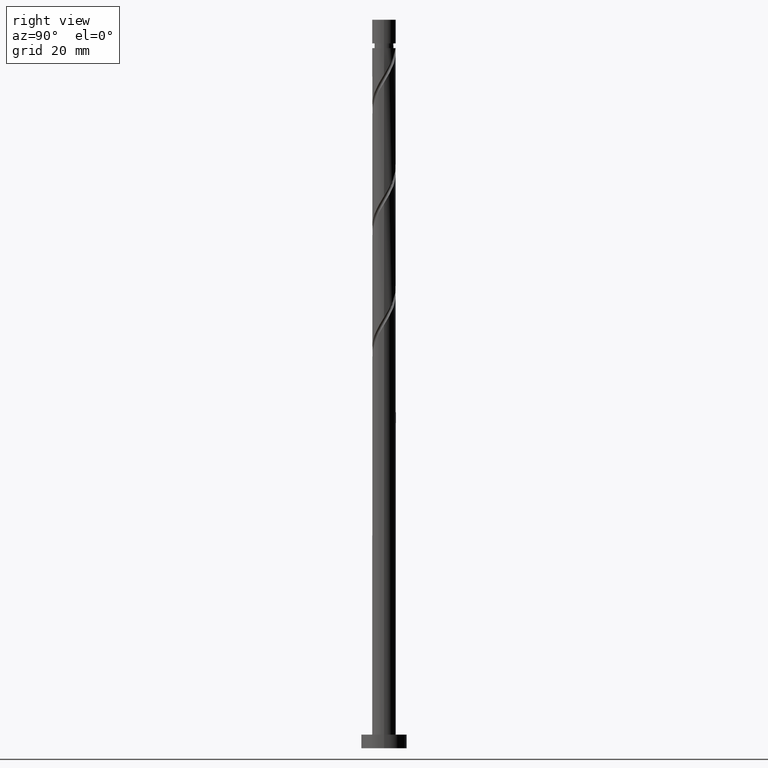
[diagram: clean part render]
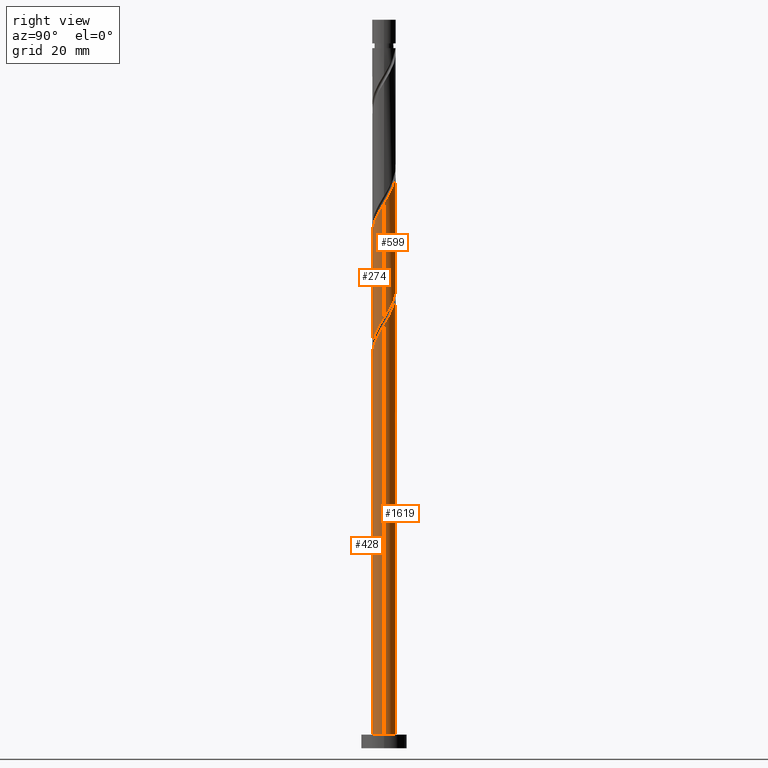
[diagram: same view with one multi-face feature highlighted, each face labeled with its STEP entity id]
A machine part, right view. The highlighted faces form ONE feature: a constant-radius fillet chain: 4 tangent blend faces with common blend radius 2.6 mm. The faces share edges in the B-rep.
Their STEP definitions:
[1] entity #1619 (Cylinder):
#3 = EDGE_CURVE ( 'NONE', #1160, #1108, #1188, .T. ) ;
#37 = CARTESIAN_POINT ( 'NONE',  ( -2.574201661218915138, 0.5227139415289434599, 80.43322514520018274 ) ) ;
#42 = AXIS2_PLACEMENT_3D ( 'NONE', #284, #1312, #166 ) ;
#49 = CARTESIAN_POINT ( 'NONE',  ( 0.000000000000000000, 0.000000000000000000, 160.0000000000000000 ) ) ;
#59 = VERTEX_POINT ( 'NONE', #1233 ) ;
#79 = CARTESIAN_POINT ( 'NONE',  ( 2.102809310219688754, 1.529115105168155297, 95.58474029671536698 ) ) ;
#81 = CARTESIAN_POINT ( 'NONE',  ( -0.5173934672954439984, 2.548000000000003151, 73.76655847853353976 ) ) ;
#82 = ORIENTED_EDGE ( 'NONE', *, *, #302, .T. ) ;
#98 = CARTESIAN_POINT ( 'NONE',  ( -2.600000000000002753, 0.2977752112013265506, 105.7644773795946662 ) ) ;
#166 = DIRECTION ( 'NONE',  ( 1.000000000000000000, 0.000000000000000000, 0.000000000000000000 ) ) ;
#180 = DIRECTION ( 'NONE',  ( -1.000000000000000000, 0.000000000000000000, 0.000000000000000000 ) ) ;
#192 = CARTESIAN_POINT ( 'NONE',  ( 1.882955749076667518, 1.831453440388288278, 96.19080090277597606 ) ) ;
#193 = CARTESIAN_POINT ( 'NONE',  ( -2.600000000000004086, 3.933643845019537576E-15, 79.58377066589930848 ) ) ;
#208 = CARTESIAN_POINT ( 'NONE',  ( -2.448156734363956755, 0.9519835404456189476, 104.6756493876244605 ) ) ;
#218 = CARTESIAN_POINT ( 'NONE',  ( -2.600000000000003642, 0.2977752112013220542, 79.09781071292800902 ) ) ;
#221 = CARTESIAN_POINT ( 'NONE',  ( -0.5173934672954439984, 2.548000000000003151, 73.76655847853353976 ) ) ;
#224 = CARTESIAN_POINT ( 'NONE',  ( -2.080784428008529918, 1.603146974375146305, 103.4635281755032707 ) ) ;
#231 = CARTESIAN_POINT ( 'NONE',  ( -1.544839342197333654, 2.124432974722969103, 75.58474029671533856 ) ) ;
#234 = CIRCLE ( 'NONE', #1413, 2.600000000000000089 ) ;
#260 = ORIENTED_EDGE ( 'NONE', *, *, #1171, .F. ) ;
#284 = CARTESIAN_POINT ( 'NONE',  ( 0.000000000000000000, 0.000000000000000000, 3.000000000000000000 ) ) ;
#302 = EDGE_CURVE ( 'NONE', #1204, #1092, #1353, .T. ) ;
#354 = ORIENTED_EDGE ( 'NONE', *, *, #836, .T. ) ;
#357 = CARTESIAN_POINT ( 'NONE',  ( 0.1510463741962523310, 2.622389950051882135, 74.37261908459414883 ) ) ;
#364 = LINE ( 'NONE', #380, #592 ) ;
#380 = CARTESIAN_POINT ( 'NONE',  ( -2.600000000000000089, 0.000000000000000000, 160.0000000000000000 ) ) ;
#385 =( BOUNDED_CURVE ( )  B_SPLINE_CURVE ( 2, ( #221, #862, #1384, #231, #1414, #529, #1559, #1433, #672, #218, #975 ),
 .UNSPECIFIED., .F., .T. ) 
 B_SPLINE_CURVE_WITH_KNOTS ( ( 3, 2, 2, 2, 2, 3 ),
 ( 0.000000000000000000, 0.01136363636363635354, 0.02272727272727270709, 0.03409090909090906063, 0.04545454545454541417, 0.05452521624175118986 ),
 .UNSPECIFIED. ) 
 CURVE ( )  GEOMETRIC_REPRESENTATION_ITEM ( )  RATIONAL_B_SPLINE_CURVE ( ( 0.9090909090909247148, 0.8998376744372269531, 0.9090909090909247148, 0.8998376744372269531, 0.9090909090909247148, 0.8998376744372269531, 0.9090909090909247148, 0.8998376744372269531, 0.9090909090909247148, 0.9017048011080045500, 0.9061101570135648986 ) ) 
 REPRESENTATION_ITEM ( '' )  );
#419 = DIRECTION ( 'NONE',  ( 0.000000000000000000, -0.000000000000000000, -1.000000000000000000 ) ) ;
#438 = CARTESIAN_POINT ( 'NONE',  ( -2.600000000000000089, 0.000000000000000000, 3.000000000000000000 ) ) ;
#446 = CARTESIAN_POINT ( 'NONE',  ( 2.448432266290815118, 0.8747453557384826661, 94.37261908459413462 ) ) ;
#448 = DIRECTION ( 'NONE',  ( -0.000000000000000000, -0.000000000000000000, -1.000000000000000000 ) ) ;
#479 = EDGE_CURVE ( 'NONE', #704, #59, #578, .T. ) ;
#501 = CARTESIAN_POINT ( 'NONE',  ( -2.600000000000004086, -3.320414196176186763E-15, 106.2504373325659657 ) ) ;
#529 = CARTESIAN_POINT ( 'NONE',  ( -2.080784428008529918, 1.603146974375146305, 76.79686150883655671 ) ) ;
#531 = CARTESIAN_POINT ( 'NONE',  ( -2.599999999999999645, 4.098168872758026045E-15, 81.28267962450111384 ) ) ;
#578 =( BOUNDED_CURVE ( )  B_SPLINE_CURVE ( 2, ( #947, #953, #1478, #37, #1054, #863, #838, #1515, #1125, #1249, #1114, #1525, #1632, #357, #1096 ),
 .UNSPECIFIED., .F., .T. ) 
 B_SPLINE_CURVE_WITH_KNOTS ( ( 3, 2, 2, 2, 2, 2, 2, 3 ),
 ( 0.9295252162417512176, 0.9318181818181817677, 0.9431818181818182323, 0.9545454545454545858, 0.9659090909090909394, 0.9772727272727272929, 0.9886363636363636465, 1.000000000000000000 ),
 .UNSPECIFIED. ) 
 CURVE ( )  GEOMETRIC_REPRESENTATION_ITEM ( )  RATIONAL_B_SPLINE_CURVE ( ( 0.9061101570135583483, 0.9072237824201405676, 0.9090909090909180534, 0.8998376744372204028, 0.9090909090909180534, 0.8998376744372204028, 0.9090909090909180534, 0.8998376744372204028, 0.9090909090909180534, 0.8998376744372204028, 0.9090909090909180534, 0.8998376744372204028, 0.9090909090909180534, 0.8998376744372204028, 0.9090909090909180534 ) ) 
 REPRESENTATION_ITEM ( '' )  );
#579 = CARTESIAN_POINT ( 'NONE',  ( 1.290702750369457696, 2.287756645161300284, 97.40292211489719421 ) ) ;
#581 = LINE ( 'NONE', #1608, #1178 ) ;
#592 = VECTOR ( 'NONE', #889, 1000.000000000000000 ) ;
#596 = CARTESIAN_POINT ( 'NONE',  ( 0.2214191583679425424, 2.590554681203940390, 99.22110393307897880 ) ) ;
#629 = CARTESIAN_POINT ( 'NONE',  ( -1.544839342197333654, 2.124432974722969103, 102.2514069633820384 ) ) ;
#672 = CARTESIAN_POINT ( 'NONE',  ( -2.532675338106944007, 0.5878398010894598791, 78.61504332701839814 ) ) ;
#696 = CARTESIAN_POINT ( 'NONE',  ( 2.600000000000004086, 3.170845989141223313E-15, 92.91710399923265129 ) ) ;
#704 = VERTEX_POINT ( 'NONE', #531 ) ;
#766 = VECTOR ( 'NONE', #1231, 1000.000000000000000 ) ;
#782 = ORIENTED_EDGE ( 'NONE', *, *, #1123, .T. ) ;
#812 = CYLINDRICAL_SURFACE ( 'NONE', #1005, 2.600000000000000089 ) ;
#817 = CARTESIAN_POINT ( 'NONE',  ( 0.000000000000000000, 0.000000000000000000, 73.76655847853355397 ) ) ;
#833 = CARTESIAN_POINT ( 'NONE',  ( 2.600000000000004086, 3.170845989141223313E-15, 92.91710399923265129 ) ) ;
#836 = EDGE_CURVE ( 'NONE', #1316, #59, #234, .T. ) ;
#838 = CARTESIAN_POINT ( 'NONE',  ( -2.102809310219684313, 1.529115105168154187, 78.61504332701838393 ) ) ;
#862 = CARTESIAN_POINT ( 'NONE',  ( -0.8837405603946372201, 2.473610049948121059, 74.37261908459414883 ) ) ;
#863 = CARTESIAN_POINT ( 'NONE',  ( -2.322662871362705328, 1.226776769948021206, 79.22110393307897880 ) ) ;
#889 = DIRECTION ( 'NONE',  ( -0.000000000000000000, -0.000000000000000000, -1.000000000000000000 ) ) ;
#938 = DIRECTION ( 'NONE',  ( -1.000000000000000000, 0.000000000000000000, 0.000000000000000000 ) ) ;
#947 = CARTESIAN_POINT ( 'NONE',  ( -2.599999999999999645, 4.098168872758026045E-15, 81.28267962450111384 ) ) ;
#948 = CARTESIAN_POINT ( 'NONE',  ( 0.5938846909321372491, 2.558719412355995981, 98.61504332701839814 ) ) ;
#953 = CARTESIAN_POINT ( 'NONE',  ( -2.600000000000000089, 0.07481636896193781527, 81.16058161978290286 ) ) ;
#975 = CARTESIAN_POINT ( 'NONE',  ( -2.600000000000004086, 3.933643845019537576E-15, 79.58377066589930848 ) ) ;
#990 = CARTESIAN_POINT ( 'NONE',  ( -1.812811885102930898, 1.863789974549057371, 102.8574675694426332 ) ) ;
#1002 = ORIENTED_EDGE ( 'NONE', *, *, #1291, .F. ) ;
#1005 = AXIS2_PLACEMENT_3D ( 'NONE', #49, #1607, #180 ) ;
#1038 = ORIENTED_EDGE ( 'NONE', *, *, #479, .F. ) ;
#1054 = CARTESIAN_POINT ( 'NONE',  ( -2.448432266290810677, 0.8747453557384823331, 79.82716453913961629 ) ) ;
#1076 = CARTESIAN_POINT ( 'NONE',  ( 2.574201661218919135, 0.5227139415289434599, 93.76655847853353976 ) ) ;
#1089 = CARTESIAN_POINT ( 'NONE',  ( 2.322662871362710657, 1.226776769948022094, 94.97867969065478633 ) ) ;
#1092 = VERTEX_POINT ( 'NONE', #438 ) ;
#1096 = CARTESIAN_POINT ( 'NONE',  ( 0.5173934672954449976, 2.547999999999999154, 73.76655847853353976 ) ) ;
#1097 = CARTESIAN_POINT ( 'NONE',  ( 2.595697801534425420, 0.1495089398978209916, 93.16049787247291647 ) ) ;
#1108 = VERTEX_POINT ( 'NONE', #1341 ) ;
#1114 = CARTESIAN_POINT ( 'NONE',  ( -0.9422937206507956409, 2.423238028758644802, 76.19080090277597606 ) ) ;
#1123 = EDGE_CURVE ( 'NONE', #1160, #1204, #581, .T. ) ;
#1125 = CARTESIAN_POINT ( 'NONE',  ( -1.586829249723058943, 2.059605042774792061, 77.40292211489717999 ) ) ;
#1134 = CARTESIAN_POINT ( 'NONE',  ( -2.264470581186242448, 1.277565257410382404, 104.0695887815638514 ) ) ;
#1160 = VERTEX_POINT ( 'NONE', #833 ) ;
#1171 = EDGE_CURVE ( 'NONE', #1615, #1092, #1501, .T. ) ;
#1178 = VECTOR ( 'NONE', #448, 1000.000000000000000 ) ;
#1185 = CARTESIAN_POINT ( 'NONE',  ( -2.600000000000000089, 0.000000000000000000, 160.0000000000000000 ) ) ;
#1188 =( BOUNDED_CURVE ( )  B_SPLINE_CURVE ( 2, ( #696, #1224, #1097, #1076, #446, #1089, #79, #192, #1211, #579, #1606, #948, #596, #1474, #1622, #1387, #1634, #629, #990, #224, #1134, #208, #1517, #98, #501 ),
 .UNSPECIFIED., .F., .T. ) 
 B_SPLINE_CURVE_WITH_KNOTS ( ( 3, 2, 2, 2, 2, 2, 2, 2, 2, 2, 2, 2, 3 ),
 ( 0.1795252162417512454, 0.1818181818181817677, 0.1931818181818182323, 0.2045454545454545858, 0.2159090909090909394, 0.2272727272727272929, 0.2386363636363636465, 0.2500000000000000000, 0.2613636363636363535, 0.2727272727272727071, 0.2840909090909090606, 0.2954545454545454142, 0.3045252162417510511 ),
 .UNSPECIFIED. ) 
 CURVE ( )  GEOMETRIC_REPRESENTATION_ITEM ( )  RATIONAL_B_SPLINE_CURVE ( ( 0.9061101570135650096, 0.9072237824201472289, 0.9090909090909247148, 0.8998376744372269531, 0.9090909090909247148, 0.8998376744372269531, 0.9090909090909247148, 0.8998376744372269531, 0.9090909090909247148, 0.8998376744372269531, 0.9090909090909247148, 0.8998376744372269531, 0.9090909090909247148, 0.8998376744372269531, 0.9090909090909247148, 0.8998376744372269531, 0.9090909090909247148, 0.8998376744372269531, 0.9090909090909247148, 0.8998376744372269531, 0.9090909090909247148, 0.8998376744372269531, 0.9090909090909247148, 0.9017048011080046610, 0.9061101570135647876 ) ) 
 REPRESENTATION_ITEM ( '' )  );
#1204 = VERTEX_POINT ( 'NONE', #1361 ) ;
#1211 = CARTESIAN_POINT ( 'NONE',  ( 1.586829249723061608, 2.059605042774794725, 96.79686150883655671 ) ) ;
#1224 = CARTESIAN_POINT ( 'NONE',  ( 2.600000000000004086, 0.07481636896193785691, 93.03920200395084805 ) ) ;
#1231 = DIRECTION ( 'NONE',  ( -0.000000000000000000, -0.000000000000000000, -1.000000000000000000 ) ) ;
#1233 = CARTESIAN_POINT ( 'NONE',  ( 0.5173934672954449976, 2.547999999999999154, 73.76655847853353976 ) ) ;
#1249 = CARTESIAN_POINT ( 'NONE',  ( -1.290702750369455920, 2.287756645161296731, 76.79686150883657092 ) ) ;
#1267 = EDGE_CURVE ( 'NONE', #1108, #704, #364, .T. ) ;
#1291 = EDGE_CURVE ( 'NONE', #1316, #1615, #385, .T. ) ;
#1312 = DIRECTION ( 'NONE',  ( 0.000000000000000000, 0.000000000000000000, 1.000000000000000000 ) ) ;
#1316 = VERTEX_POINT ( 'NONE', #81 ) ;
#1341 = CARTESIAN_POINT ( 'NONE',  ( -2.600000000000004086, -3.320414196176186763E-15, 106.2504373325659657 ) ) ;
#1353 = CIRCLE ( 'NONE', #42, 2.600000000000000089 ) ;
#1361 = CARTESIAN_POINT ( 'NONE',  ( 2.600000000000000089, 3.184081677783118191E-16, 3.000000000000000000 ) ) ;
#1384 = CARTESIAN_POINT ( 'NONE',  ( -1.214289951295985492, 2.299021512335544415, 74.97867969065474369 ) ) ;
#1387 = CARTESIAN_POINT ( 'NONE',  ( -0.8837405603946372201, 2.473610049948121059, 101.0392857512608202 ) ) ;
#1413 = AXIS2_PLACEMENT_3D ( 'NONE', #817, #419, #938 ) ;
#1414 = CARTESIAN_POINT ( 'NONE',  ( -1.812811885102930898, 1.863789974549057371, 76.19080090277597606 ) ) ;
#1423 = EDGE_LOOP ( 'NONE', ( #1442, #782, #82, #260, #1002, #354, #1038, #1630 ) ) ;
#1433 = CARTESIAN_POINT ( 'NONE',  ( -2.448156734363956755, 0.9519835404456189476, 78.00898272095778907 ) ) ;
#1442 = ORIENTED_EDGE ( 'NONE', *, *, #3, .F. ) ;
#1474 = CARTESIAN_POINT ( 'NONE',  ( -0.1510463741962517481, 2.622389950051887020, 99.82716453913960208 ) ) ;
#1478 = CARTESIAN_POINT ( 'NONE',  ( -2.595697801534421423, 0.1495089398978218520, 81.03928575126084866 ) ) ;
#1501 = LINE ( 'NONE', #1185, #766 ) ;
#1515 = CARTESIAN_POINT ( 'NONE',  ( -1.882955749076662411, 1.831453440388287390, 78.00898272095777486 ) ) ;
#1517 = CARTESIAN_POINT ( 'NONE',  ( -2.532675338106944007, 0.5878398010894598791, 105.2817099936850269 ) ) ;
#1525 = CARTESIAN_POINT ( 'NONE',  ( -0.5938846909321356948, 2.558719412355991096, 75.58474029671533856 ) ) ;
#1559 = CARTESIAN_POINT ( 'NONE',  ( -2.264470581186242448, 1.277565257410382404, 77.40292211489717999 ) ) ;
#1584 = FACE_OUTER_BOUND ( 'NONE', #1423, .T. ) ;
#1606 = CARTESIAN_POINT ( 'NONE',  ( 0.9422937206507969732, 2.423238028758647022, 98.00898272095780328 ) ) ;
#1607 = DIRECTION ( 'NONE',  ( -0.000000000000000000, -0.000000000000000000, -1.000000000000000000 ) ) ;
#1608 = CARTESIAN_POINT ( 'NONE',  ( 2.600000000000000089, 3.184081677783118191E-16, 160.0000000000000000 ) ) ;
#1615 = VERTEX_POINT ( 'NONE', #193 ) ;
#1619 = ADVANCED_FACE ( 'NONE', ( #1584 ), #812, .T. ) ;
#1622 = CARTESIAN_POINT ( 'NONE',  ( -0.5173934672954441094, 2.548000000000002707, 100.4332251452002254 ) ) ;
#1630 = ORIENTED_EDGE ( 'NONE', *, *, #1267, .F. ) ;
#1632 = CARTESIAN_POINT ( 'NONE',  ( -0.2214191583679415987, 2.590554681203936838, 74.97867969065477212 ) ) ;
#1634 = CARTESIAN_POINT ( 'NONE',  ( -1.214289951295985492, 2.299021512335544415, 101.6453463573214009 ) ) ;
[2] entity #428 (Cylinder):
#7 = CARTESIAN_POINT ( 'NONE',  ( 2.532675338106944007, -0.5878398010894598791, 91.94837666035169832 ) ) ;
#128 = CARTESIAN_POINT ( 'NONE',  ( -1.586829249723061608, -2.059605042774794281, 83.46352817550325653 ) ) ;
#137 = CARTESIAN_POINT ( 'NONE',  ( 0.8837405603946367760, -2.473610049948121503, 87.70595241792750585 ) ) ;
#147 = CARTESIAN_POINT ( 'NONE',  ( 1.544839342197333876, -2.124432974722969103, 88.91807363004870979 ) ) ;
#156 = CARTESIAN_POINT ( 'NONE',  ( -2.600000000000004086, -0.07481636896193624708, 79.70586867061751946 ) ) ;
#167 = ORIENTED_EDGE ( 'NONE', *, *, #1123, .F. ) ;
#187 = DIRECTION ( 'NONE',  ( -1.000000000000000000, 0.000000000000000000, 0.000000000000000000 ) ) ;
#193 = CARTESIAN_POINT ( 'NONE',  ( -2.600000000000004086, 3.933643845019537576E-15, 79.58377066589930848 ) ) ;
#201 = ORIENTED_EDGE ( 'NONE', *, *, #675, .F. ) ;
#239 = CARTESIAN_POINT ( 'NONE',  ( -0.2214191583679423481, -2.590554681203940390, 85.88777059974569283 ) ) ;
#245 = CARTESIAN_POINT ( 'NONE',  ( 0.5173934672954443315, -2.548000000000002707, 87.09989181186685414 ) ) ;
#273 = CARTESIAN_POINT ( 'NONE',  ( -2.595697801534425420, -0.1495089398978212691, 79.82716453913958787 ) ) ;
#311 = CARTESIAN_POINT ( 'NONE',  ( 0.000000000000000000, 0.000000000000000000, 160.0000000000000000 ) ) ;
#374 = CARTESIAN_POINT ( 'NONE',  ( -0.9422937206507979724, -2.423238028758646578, 84.67564938762443205 ) ) ;
#428 = ADVANCED_FACE ( 'NONE', ( #1088 ), #1465, .T. ) ;
#438 = CARTESIAN_POINT ( 'NONE',  ( -2.600000000000000089, 0.000000000000000000, 3.000000000000000000 ) ) ;
#448 = DIRECTION ( 'NONE',  ( -0.000000000000000000, -0.000000000000000000, -1.000000000000000000 ) ) ;
#522 = CARTESIAN_POINT ( 'NONE',  ( -1.290702750369458363, -2.287756645161299840, 84.06958878156385140 ) ) ;
#581 = LINE ( 'NONE', #1608, #1178 ) ;
#618 = AXIS2_PLACEMENT_3D ( 'NONE', #311, #1337, #187 ) ;
#640 = CARTESIAN_POINT ( 'NONE',  ( 2.448156734363956755, -0.9519835404456181704, 91.34231605429111767 ) ) ;
#642 = AXIS2_PLACEMENT_3D ( 'NONE', #1416, #909, #890 ) ;
#651 = EDGE_CURVE ( 'NONE', #1092, #1204, #1147, .T. ) ;
#654 = CARTESIAN_POINT ( 'NONE',  ( 2.600000000000004530, -0.2977752112013202779, 92.43114404626135183 ) ) ;
#664 = CARTESIAN_POINT ( 'NONE',  ( -0.5938846909321369161, -2.558719412355995981, 85.28170999368506955 ) ) ;
#675 = EDGE_CURVE ( 'NONE', #1615, #1160, #1025, .T. ) ;
#766 = VECTOR ( 'NONE', #1231, 1000.000000000000000 ) ;
#773 = CARTESIAN_POINT ( 'NONE',  ( -2.600000000000004086, 3.933643845019537576E-15, 79.58377066589930848 ) ) ;
#833 = CARTESIAN_POINT ( 'NONE',  ( 2.600000000000004086, 3.170845989141223313E-15, 92.91710399923265129 ) ) ;
#880 = CARTESIAN_POINT ( 'NONE',  ( 0.1510463741962521089, -2.622389950051887020, 86.49383120580628770 ) ) ;
#890 = DIRECTION ( 'NONE',  ( 1.000000000000000000, 0.000000000000000000, 0.000000000000000000 ) ) ;
#909 = DIRECTION ( 'NONE',  ( 0.000000000000000000, 0.000000000000000000, 1.000000000000000000 ) ) ;
#932 = EDGE_LOOP ( 'NONE', ( #167, #201, #1409, #1376 ) ) ;
#1025 =( BOUNDED_CURVE ( )  B_SPLINE_CURVE ( 2, ( #773, #156, #273, #1653, #1534, #1273, #1280, #1292, #128, #522, #374, #664, #239, #880, #245, #137, #1398, #147, #1148, #1302, #1157, #640, #7, #654, #1167 ),
 .UNSPECIFIED., .F., .T. ) 
 B_SPLINE_CURVE_WITH_KNOTS ( ( 3, 2, 2, 2, 2, 2, 2, 2, 2, 2, 2, 2, 3 ),
 ( 0.05452521624175118986, 0.05681818181818176772, 0.06818181818181823228, 0.07954545454545458583, 0.09090909090909093937, 0.1022727272727272929, 0.1136363636363636465, 0.1250000000000000000, 0.1363636363636363535, 0.1477272727272727071, 0.1590909090909090606, 0.1704545454545454142, 0.1795252162417512454 ),
 .UNSPECIFIED. ) 
 CURVE ( )  GEOMETRIC_REPRESENTATION_ITEM ( )  RATIONAL_B_SPLINE_CURVE ( ( 0.9061101570135648986, 0.9072237824201471179, 0.9090909090909247148, 0.8998376744372269531, 0.9090909090909247148, 0.8998376744372269531, 0.9090909090909247148, 0.8998376744372269531, 0.9090909090909247148, 0.8998376744372269531, 0.9090909090909247148, 0.8998376744372269531, 0.9090909090909247148, 0.8998376744372269531, 0.9090909090909247148, 0.8998376744372269531, 0.9090909090909247148, 0.8998376744372269531, 0.9090909090909247148, 0.8998376744372269531, 0.9090909090909247148, 0.8998376744372269531, 0.9090909090909247148, 0.9017048011080044390, 0.9061101570135650096 ) ) 
 REPRESENTATION_ITEM ( '' )  );
#1088 = FACE_OUTER_BOUND ( 'NONE', #932, .T. ) ;
#1092 = VERTEX_POINT ( 'NONE', #438 ) ;
#1123 = EDGE_CURVE ( 'NONE', #1160, #1204, #581, .T. ) ;
#1147 = CIRCLE ( 'NONE', #642, 2.600000000000000089 ) ;
#1148 = CARTESIAN_POINT ( 'NONE',  ( 1.812811885102930898, -1.863789974549057371, 89.52413423610930465 ) ) ;
#1157 = CARTESIAN_POINT ( 'NONE',  ( 2.264470581186242448, -1.277565257410382626, 90.73625544823052280 ) ) ;
#1160 = VERTEX_POINT ( 'NONE', #833 ) ;
#1167 = CARTESIAN_POINT ( 'NONE',  ( 2.600000000000004086, 3.170845989141223313E-15, 92.91710399923265129 ) ) ;
#1171 = EDGE_CURVE ( 'NONE', #1615, #1092, #1501, .T. ) ;
#1178 = VECTOR ( 'NONE', #448, 1000.000000000000000 ) ;
#1185 = CARTESIAN_POINT ( 'NONE',  ( -2.600000000000000089, 0.000000000000000000, 160.0000000000000000 ) ) ;
#1204 = VERTEX_POINT ( 'NONE', #1361 ) ;
#1231 = DIRECTION ( 'NONE',  ( -0.000000000000000000, -0.000000000000000000, -1.000000000000000000 ) ) ;
#1273 = CARTESIAN_POINT ( 'NONE',  ( -2.322662871362709769, -1.226776769948022761, 81.64534635732142931 ) ) ;
#1280 = CARTESIAN_POINT ( 'NONE',  ( -2.102809310219688310, -1.529115105168155964, 82.25140696338200996 ) ) ;
#1292 = CARTESIAN_POINT ( 'NONE',  ( -1.882955749076666407, -1.831453440388289389, 82.85746756944266167 ) ) ;
#1302 = CARTESIAN_POINT ( 'NONE',  ( 2.080784428008529474, -1.603146974375146749, 90.13019484216992794 ) ) ;
#1337 = DIRECTION ( 'NONE',  ( -0.000000000000000000, -0.000000000000000000, -1.000000000000000000 ) ) ;
#1361 = CARTESIAN_POINT ( 'NONE',  ( 2.600000000000000089, 3.184081677783118191E-16, 3.000000000000000000 ) ) ;
#1376 = ORIENTED_EDGE ( 'NONE', *, *, #651, .T. ) ;
#1398 = CARTESIAN_POINT ( 'NONE',  ( 1.214289951295984382, -2.299021512335544859, 88.31201302398808650 ) ) ;
#1409 = ORIENTED_EDGE ( 'NONE', *, *, #1171, .T. ) ;
#1416 = CARTESIAN_POINT ( 'NONE',  ( 0.000000000000000000, 0.000000000000000000, 3.000000000000000000 ) ) ;
#1465 = CYLINDRICAL_SURFACE ( 'NONE', #618, 2.600000000000000089 ) ;
#1501 = LINE ( 'NONE', #1185, #766 ) ;
#1534 = CARTESIAN_POINT ( 'NONE',  ( -2.448432266290815118, -0.8747453557384828882, 81.03928575126080602 ) ) ;
#1608 = CARTESIAN_POINT ( 'NONE',  ( 2.600000000000000089, 3.184081677783118191E-16, 160.0000000000000000 ) ) ;
#1615 = VERTEX_POINT ( 'NONE', #193 ) ;
#1653 = CARTESIAN_POINT ( 'NONE',  ( -2.574201661218919135, -0.5227139415289436819, 80.43322514520022537 ) ) ;
[3] entity #274 (Cylinder):
#11 = CARTESIAN_POINT ( 'NONE',  ( -1.290702750369458363, -2.287756645161299840, 110.7362554482305086 ) ) ;
#39 =( BOUNDED_CURVE ( )  B_SPLINE_CURVE ( 2, ( #1345, #695, #1082, #1581, #820, #677, #810, #1187, #47, #940, #431, #1448, #1591, #293, #1195, #191, #687, #1329, #65, #1352, #56, #327, #436, #702, #422 ),
 .UNSPECIFIED., .F., .T. ) 
 B_SPLINE_CURVE_WITH_KNOTS ( ( 3, 2, 2, 2, 2, 2, 2, 2, 2, 2, 2, 2, 3 ),
 ( 0.8045252162417511066, 0.8068181818181817677, 0.8181818181818182323, 0.8295454545454545858, 0.8409090909090909394, 0.8522727272727272929, 0.8636363636363636465, 0.8750000000000000000, 0.8863636363636363535, 0.8977272727272727071, 0.9090909090909090606, 0.9204545454545454142, 0.9295252162417512176 ),
 .UNSPECIFIED. ) 
 CURVE ( )  GEOMETRIC_REPRESENTATION_ITEM ( )  RATIONAL_B_SPLINE_CURVE ( ( 0.9061101570135583483, 0.9072237824201404566, 0.9090909090909180534, 0.8998376744372204028, 0.9090909090909180534, 0.8998376744372204028, 0.9090909090909180534, 0.8998376744372204028, 0.9090909090909180534, 0.8998376744372204028, 0.9090909090909180534, 0.8998376744372204028, 0.9090909090909180534, 0.8998376744372204028, 0.9090909090909180534, 0.8998376744372204028, 0.9090909090909180534, 0.8998376744372204028, 0.9090909090909180534, 0.8998376744372204028, 0.9090909090909180534, 0.8998376744372204028, 0.9090909090909180534, 0.9017048011079978886, 0.9061101570135583483 ) ) 
 REPRESENTATION_ITEM ( '' )  );
#47 = CARTESIAN_POINT ( 'NONE',  ( 1.586829249723058943, -2.059605042774792949, 90.73625544823052280 ) ) ;
#56 = CARTESIAN_POINT ( 'NONE',  ( -2.264470581186239340, -1.277565257410379962, 83.46352817550324232 ) ) ;
#65 = CARTESIAN_POINT ( 'NONE',  ( -1.812811885102929566, -1.863789974549053596, 84.67564938762446047 ) ) ;
#114 = ORIENTED_EDGE ( 'NONE', *, *, #1144, .F. ) ;
#130 = CARTESIAN_POINT ( 'NONE',  ( 0.1510463741962521089, -2.622389950051887020, 113.1604978724729307 ) ) ;
#151 = CARTESIAN_POINT ( 'NONE',  ( -2.322662871362709769, -1.226776769948022761, 108.3120130239881149 ) ) ;
#191 = CARTESIAN_POINT ( 'NONE',  ( -0.8837405603946362209, -2.473610049948115730, 86.49383120580627349 ) ) ;
#243 = EDGE_LOOP ( 'NONE', ( #114, #270, #313, #1439 ) ) ;
#249 = CARTESIAN_POINT ( 'NONE',  ( -2.600000000000004086, -0.07481636896193172293, 106.3725353372841624 ) ) ;
#266 = EDGE_CURVE ( 'NONE', #1108, #1313, #1536, .T. ) ;
#268 = DIRECTION ( 'NONE',  ( -0.000000000000000000, -0.000000000000000000, -1.000000000000000000 ) ) ;
#270 = ORIENTED_EDGE ( 'NONE', *, *, #266, .F. ) ;
#274 = ADVANCED_FACE ( 'NONE', ( #1552 ), #767, .T. ) ;
#293 = CARTESIAN_POINT ( 'NONE',  ( -0.1510463741962530249, -2.622389950051882579, 87.70595241792746322 ) ) ;
#313 = ORIENTED_EDGE ( 'NONE', *, *, #1267, .T. ) ;
#327 = CARTESIAN_POINT ( 'NONE',  ( -2.448156734363953202, -0.9519835404456163941, 82.85746756944264746 ) ) ;
#341 = EDGE_CURVE ( 'NONE', #407, #704, #39, .T. ) ;
#364 = LINE ( 'NONE', #380, #592 ) ;
#376 = CARTESIAN_POINT ( 'NONE',  ( -2.595697801534425420, -0.1495089398978212691, 106.4938312058062451 ) ) ;
#380 = CARTESIAN_POINT ( 'NONE',  ( -2.600000000000000089, 0.000000000000000000, 160.0000000000000000 ) ) ;
#383 = CARTESIAN_POINT ( 'NONE',  ( -2.448432266290815118, -0.8747453557384828882, 107.7059524179274916 ) ) ;
#393 = CARTESIAN_POINT ( 'NONE',  ( 1.544839342197333876, -2.124432974722969103, 115.5847402967153670 ) ) ;
#405 = CARTESIAN_POINT ( 'NONE',  ( -2.102809310219688310, -1.529115105168155964, 108.9180736300486672 ) ) ;
#407 = VERTEX_POINT ( 'NONE', #1216 ) ;
#422 = CARTESIAN_POINT ( 'NONE',  ( -2.599999999999999645, 4.098168872758026045E-15, 81.28267962450111384 ) ) ;
#431 = CARTESIAN_POINT ( 'NONE',  ( 0.9422937206507956409, -2.423238028758644802, 89.52413423610930465 ) ) ;
#436 = CARTESIAN_POINT ( 'NONE',  ( -2.532675338106940455, -0.5878398010894585468, 82.25140696338200996 ) ) ;
#486 = CARTESIAN_POINT ( 'NONE',  ( 2.600000000000000089, 3.184081677783118191E-16, 160.0000000000000000 ) ) ;
#509 = CARTESIAN_POINT ( 'NONE',  ( 2.448156734363956755, -0.9519835404456181704, 118.0089827209577464 ) ) ;
#531 = CARTESIAN_POINT ( 'NONE',  ( -2.599999999999999645, 4.098168872758026045E-15, 81.28267962450111384 ) ) ;
#564 = VECTOR ( 'NONE', #1381, 1000.000000000000000 ) ;
#592 = VECTOR ( 'NONE', #889, 1000.000000000000000 ) ;
#649 = CARTESIAN_POINT ( 'NONE',  ( 2.600000000000007194, -0.2977752112013085650, 119.0978107129280374 ) ) ;
#666 = CARTESIAN_POINT ( 'NONE',  ( -0.2214191583679423481, -2.590554681203940390, 112.5544372664123216 ) ) ;
#677 = CARTESIAN_POINT ( 'NONE',  ( 2.322662871362705328, -1.226776769948020984, 92.55443726641230739 ) ) ;
#687 = CARTESIAN_POINT ( 'NONE',  ( -1.214289951295983716, -2.299021512335540418, 85.88777059974565020 ) ) ;
#695 = CARTESIAN_POINT ( 'NONE',  ( 2.600000000000000977, -0.07481636896193463726, 94.49391495311620304 ) ) ;
#702 = CARTESIAN_POINT ( 'NONE',  ( -2.600000000000000089, -0.2977752112013200003, 81.76863957747241329 ) ) ;
#704 = VERTEX_POINT ( 'NONE', #531 ) ;
#758 = CARTESIAN_POINT ( 'NONE',  ( 2.532675338106944007, -0.5878398010894598791, 118.6150433270183839 ) ) ;
#767 = CYLINDRICAL_SURFACE ( 'NONE', #1463, 2.600000000000000089 ) ;
#781 = CARTESIAN_POINT ( 'NONE',  ( 0.5173934672954443315, -2.548000000000002707, 113.7665584785335398 ) ) ;
#791 = CARTESIAN_POINT ( 'NONE',  ( 1.812811885102930898, -1.863789974549057371, 116.1908009027759761 ) ) ;
#810 = CARTESIAN_POINT ( 'NONE',  ( 2.102809310219684313, -1.529115105168154187, 91.94837666035172674 ) ) ;
#820 = CARTESIAN_POINT ( 'NONE',  ( 2.448432266290810677, -0.8747453557384825551, 93.16049787247295910 ) ) ;
#883 = CARTESIAN_POINT ( 'NONE',  ( -2.600000000000004086, -3.320414196176186763E-15, 106.2504373325659657 ) ) ;
#889 = DIRECTION ( 'NONE',  ( -0.000000000000000000, -0.000000000000000000, -1.000000000000000000 ) ) ;
#893 = CARTESIAN_POINT ( 'NONE',  ( -1.586829249723061608, -2.059605042774794281, 110.1301948421698995 ) ) ;
#904 = CARTESIAN_POINT ( 'NONE',  ( 2.080784428008529474, -1.603146974375146749, 116.7968615088365709 ) ) ;
#921 = CARTESIAN_POINT ( 'NONE',  ( 0.000000000000000000, 0.000000000000000000, 160.0000000000000000 ) ) ;
#940 = CARTESIAN_POINT ( 'NONE',  ( 1.290702750369455254, -2.287756645161296731, 90.13019484216988531 ) ) ;
#1009 = CARTESIAN_POINT ( 'NONE',  ( -2.574201661218919135, -0.5227139415289436819, 107.0998918118668968 ) ) ;
#1035 = CARTESIAN_POINT ( 'NONE',  ( 1.214289951295984382, -2.299021512335544859, 114.9786796906547579 ) ) ;
#1082 = CARTESIAN_POINT ( 'NONE',  ( 2.595697801534421423, -0.1495089398978222128, 94.37261908459414883 ) ) ;
#1108 = VERTEX_POINT ( 'NONE', #1341 ) ;
#1144 = EDGE_CURVE ( 'NONE', #1313, #407, #1262, .T. ) ;
#1173 = CARTESIAN_POINT ( 'NONE',  ( 2.600000000000004086, 3.170845989141223313E-15, 119.5837706658993369 ) ) ;
#1187 = CARTESIAN_POINT ( 'NONE',  ( 1.882955749076662855, -1.831453440388286724, 91.34231605429113188 ) ) ;
#1195 = CARTESIAN_POINT ( 'NONE',  ( -0.5173934672954447755, -2.548000000000000043, 87.09989181186689677 ) ) ;
#1216 = CARTESIAN_POINT ( 'NONE',  ( 2.600000000000000533, 2.595008392056634366E-15, 94.61601295783442822 ) ) ;
#1262 = LINE ( 'NONE', #486, #564 ) ;
#1267 = EDGE_CURVE ( 'NONE', #1108, #704, #364, .T. ) ;
#1284 = CARTESIAN_POINT ( 'NONE',  ( 2.600000000000004086, 3.170845989141223313E-15, 119.5837706658993369 ) ) ;
#1296 = DIRECTION ( 'NONE',  ( -1.000000000000000000, 0.000000000000000000, 0.000000000000000000 ) ) ;
#1304 = CARTESIAN_POINT ( 'NONE',  ( 2.264470581186242448, -1.277565257410382626, 117.4029221148971516 ) ) ;
#1313 = VERTEX_POINT ( 'NONE', #1173 ) ;
#1329 = CARTESIAN_POINT ( 'NONE',  ( -1.544839342197330989, -2.124432974722964662, 85.28170999368504113 ) ) ;
#1341 = CARTESIAN_POINT ( 'NONE',  ( -2.600000000000004086, -3.320414196176186763E-15, 106.2504373325659657 ) ) ;
#1345 = CARTESIAN_POINT ( 'NONE',  ( 2.600000000000000533, 2.595008392056634366E-15, 94.61601295783441401 ) ) ;
#1352 = CARTESIAN_POINT ( 'NONE',  ( -2.080784428008527254, -1.603146974375142975, 84.06958878156382298 ) ) ;
#1381 = DIRECTION ( 'NONE',  ( -0.000000000000000000, -0.000000000000000000, -1.000000000000000000 ) ) ;
#1407 = CARTESIAN_POINT ( 'NONE',  ( -1.882955749076666407, -1.831453440388289389, 109.5241342361093047 ) ) ;
#1418 = CARTESIAN_POINT ( 'NONE',  ( -0.9422937206507979724, -2.423238028758646578, 111.3423160542910892 ) ) ;
#1428 = CARTESIAN_POINT ( 'NONE',  ( 0.8837405603946367760, -2.473610049948121503, 114.3726190845941630 ) ) ;
#1439 = ORIENTED_EDGE ( 'NONE', *, *, #341, .F. ) ;
#1448 = CARTESIAN_POINT ( 'NONE',  ( 0.5938846909321360279, -2.558719412355991096, 88.91807363004869558 ) ) ;
#1463 = AXIS2_PLACEMENT_3D ( 'NONE', #921, #268, #1296 ) ;
#1536 =( BOUNDED_CURVE ( )  B_SPLINE_CURVE ( 2, ( #883, #249, #376, #1009, #383, #151, #405, #1407, #893, #11, #1418, #1543, #666, #130, #781, #1428, #1035, #393, #791, #904, #1304, #509, #758, #649, #1284 ),
 .UNSPECIFIED., .F., .T. ) 
 B_SPLINE_CURVE_WITH_KNOTS ( ( 3, 2, 2, 2, 2, 2, 2, 2, 2, 2, 2, 2, 3 ),
 ( 0.3045252162417510511, 0.3068181818181817677, 0.3181818181818182323, 0.3295454545454545858, 0.3409090909090909394, 0.3522727272727272929, 0.3636363636363636465, 0.3750000000000000000, 0.3863636363636363535, 0.3977272727272727071, 0.4090909090909090606, 0.4204545454545454142, 0.4295252162417516062 ),
 .UNSPECIFIED. ) 
 CURVE ( )  GEOMETRIC_REPRESENTATION_ITEM ( )  RATIONAL_B_SPLINE_CURVE ( ( 0.9061101570135647876, 0.9072237824201470069, 0.9090909090909247148, 0.8998376744372269531, 0.9090909090909247148, 0.8998376744372269531, 0.9090909090909247148, 0.8998376744372269531, 0.9090909090909247148, 0.8998376744372269531, 0.9090909090909247148, 0.8998376744372269531, 0.9090909090909247148, 0.8998376744372269531, 0.9090909090909247148, 0.8998376744372269531, 0.9090909090909247148, 0.8998376744372269531, 0.9090909090909247148, 0.8998376744372269531, 0.9090909090909247148, 0.8998376744372269531, 0.9090909090909247148, 0.9017048011080042169, 0.9061101570135653427 ) ) 
 REPRESENTATION_ITEM ( '' )  );
#1543 = CARTESIAN_POINT ( 'NONE',  ( -0.5938846909321369161, -2.558719412355995981, 111.9483766603517410 ) ) ;
#1552 = FACE_OUTER_BOUND ( 'NONE', #243, .T. ) ;
#1581 = CARTESIAN_POINT ( 'NONE',  ( 2.574201661218915138, -0.5227139415289437929, 93.76655847853355397 ) ) ;
#1591 = CARTESIAN_POINT ( 'NONE',  ( 0.2214191583679407382, -2.590554681203937282, 88.31201302398808650 ) ) ;
[4] entity #599 (Cylinder):
#6 = CARTESIAN_POINT ( 'NONE',  ( 0.5173934672954449976, 2.548000000000000043, 100.4332251452002254 ) ) ;
#17 = CARTESIAN_POINT ( 'NONE',  ( 2.532675338106940899, 0.5878398010894576586, 95.58474029671536698 ) ) ;
#155 = CARTESIAN_POINT ( 'NONE',  ( 2.080784428008526366, 1.603146974375144085, 97.40292211489719421 ) ) ;
#165 = CARTESIAN_POINT ( 'NONE',  ( -1.882955749076662411, 1.831453440388287390, 104.6756493876244463 ) ) ;
#169 = CARTESIAN_POINT ( 'NONE',  ( 2.600000000000000533, 2.595008392056634366E-15, 94.61601295783441401 ) ) ;
#206 = CARTESIAN_POINT ( 'NONE',  ( 0.000000000000000000, 0.000000000000000000, 160.0000000000000000 ) ) ;
#212 = CARTESIAN_POINT ( 'NONE',  ( -0.1510463741962517481, 2.622389950051887020, 126.4938312058063019 ) ) ;
#222 = CARTESIAN_POINT ( 'NONE',  ( 2.448432266290815118, 0.8747453557384826661, 121.0392857512608060 ) ) ;
#282 = CARTESIAN_POINT ( 'NONE',  ( -2.600000000000000089, 0.07481636896194146513, 107.8272482864495458 ) ) ;
#319 = AXIS2_PLACEMENT_3D ( 'NONE', #206, #1260, #601 ) ;
#333 = ORIENTED_EDGE ( 'NONE', *, *, #1166, .F. ) ;
#389 = CARTESIAN_POINT ( 'NONE',  ( 2.448156734363953646, 0.9519835404456153949, 96.19080090277594763 ) ) ;
#390 = CARTESIAN_POINT ( 'NONE',  ( -2.600000000000004530, 3.933643845019537576E-15, 132.9171039992326655 ) ) ;
#407 = VERTEX_POINT ( 'NONE', #1216 ) ;
#421 = CARTESIAN_POINT ( 'NONE',  ( -2.574201661218915138, 0.5227139415289434599, 107.0998918118668684 ) ) ;
#455 =( BOUNDED_CURVE ( )  B_SPLINE_CURVE ( 2, ( #780, #282, #1447, #421, #790, #1063, #561, #165, #550, #1052, #1580, #927, #799, #1290, #6, #1307, #521, #530, #1049, #155, #918, #389, #17, #1318, #169 ),
 .UNSPECIFIED., .F., .T. ) 
 B_SPLINE_CURVE_WITH_KNOTS ( ( 3, 2, 2, 2, 2, 2, 2, 2, 2, 2, 2, 2, 3 ),
 ( 0.6795252162417513286, 0.6818181818181817677, 0.6931818181818182323, 0.7045454545454545858, 0.7159090909090909394, 0.7272727272727272929, 0.7386363636363636465, 0.7500000000000000000, 0.7613636363636363535, 0.7727272727272727071, 0.7840909090909090606, 0.7954545454545454142, 0.8045252162417511066 ),
 .UNSPECIFIED. ) 
 CURVE ( )  GEOMETRIC_REPRESENTATION_ITEM ( )  RATIONAL_B_SPLINE_CURVE ( ( 0.9061101570135584593, 0.9072237824201405676, 0.9090909090909180534, 0.8998376744372204028, 0.9090909090909180534, 0.8998376744372204028, 0.9090909090909180534, 0.8998376744372204028, 0.9090909090909180534, 0.8998376744372204028, 0.9090909090909180534, 0.8998376744372204028, 0.9090909090909180534, 0.8998376744372204028, 0.9090909090909180534, 0.8998376744372204028, 0.9090909090909180534, 0.8998376744372204028, 0.9090909090909180534, 0.8998376744372204028, 0.9090909090909180534, 0.8998376744372204028, 0.9090909090909180534, 0.9017048011079979997, 0.9061101570135583483 ) ) 
 REPRESENTATION_ITEM ( '' )  );
#461 = FACE_OUTER_BOUND ( 'NONE', #1658, .T. ) ;
#472 = CARTESIAN_POINT ( 'NONE',  ( 1.290702750369457696, 2.287756645161300284, 124.0695887815638514 ) ) ;
#473 = DIRECTION ( 'NONE',  ( -0.000000000000000000, -0.000000000000000000, -1.000000000000000000 ) ) ;
#486 = CARTESIAN_POINT ( 'NONE',  ( 2.600000000000000089, 3.184081677783118191E-16, 160.0000000000000000 ) ) ;
#490 = CARTESIAN_POINT ( 'NONE',  ( 2.595697801534425420, 0.1495089398978209916, 119.8271645391396163 ) ) ;
#515 = CARTESIAN_POINT ( 'NONE',  ( -2.080784428008529918, 1.603146974375146305, 130.1301948421699137 ) ) ;
#521 = CARTESIAN_POINT ( 'NONE',  ( 1.214289951295983716, 2.299021512335540418, 99.22110393307902143 ) ) ;
#530 = CARTESIAN_POINT ( 'NONE',  ( 1.544839342197331655, 2.124432974722964662, 98.61504332701839814 ) ) ;
#550 = CARTESIAN_POINT ( 'NONE',  ( -1.586829249723058943, 2.059605042774792061, 104.0695887815638514 ) ) ;
#561 = CARTESIAN_POINT ( 'NONE',  ( -2.102809310219684313, 1.529115105168154187, 105.2817099936850695 ) ) ;
#564 = VECTOR ( 'NONE', #1381, 1000.000000000000000 ) ;
#595 = CARTESIAN_POINT ( 'NONE',  ( 0.5938846909321372491, 2.558719412355995981, 125.2817099936850695 ) ) ;
#599 = ADVANCED_FACE ( 'NONE', ( #461 ), #619, .T. ) ;
#601 = DIRECTION ( 'NONE',  ( -1.000000000000000000, 0.000000000000000000, 0.000000000000000000 ) ) ;
#604 = CARTESIAN_POINT ( 'NONE',  ( -2.600000000000000089, 0.000000000000000000, 160.0000000000000000 ) ) ;
#619 = CYLINDRICAL_SURFACE ( 'NONE', #319, 2.600000000000000089 ) ;
#627 = EDGE_CURVE ( 'NONE', #1313, #1111, #737, .T. ) ;
#647 = CARTESIAN_POINT ( 'NONE',  ( -1.214289951295985492, 2.299021512335544415, 128.3120130239881007 ) ) ;
#716 = CARTESIAN_POINT ( 'NONE',  ( 1.882955749076667518, 1.831453440388288278, 122.8574675694426475 ) ) ;
#737 =( BOUNDED_CURVE ( )  B_SPLINE_CURVE ( 2, ( #1370, #997, #490, #854, #222, #1647, #987, #716, #1232, #472, #1223, #595, #1621, #212, #970, #901, #647, #1032, #1142, #515, #1023, #1426, #764, #1550, #390 ),
 .UNSPECIFIED., .F., .T. ) 
 B_SPLINE_CURVE_WITH_KNOTS ( ( 3, 2, 2, 2, 2, 2, 2, 2, 2, 2, 2, 2, 3 ),
 ( 0.4295252162417516062, 0.4318181818181817677, 0.4431818181818182323, 0.4545454545454545858, 0.4659090909090909394, 0.4772727272727272929, 0.4886363636363636465, 0.5000000000000000000, 0.5113636363636363535, 0.5227272727272727071, 0.5340909090909091717, 0.5454545454545454142, 0.5545252162417515507 ),
 .UNSPECIFIED. ) 
 CURVE ( )  GEOMETRIC_REPRESENTATION_ITEM ( )  RATIONAL_B_SPLINE_CURVE ( ( 0.9061101570135653427, 0.9072237824201474510, 0.9090909090909247148, 0.8998376744372269531, 0.9090909090909247148, 0.8998376744372269531, 0.9090909090909247148, 0.8998376744372269531, 0.9090909090909247148, 0.8998376744372269531, 0.9090909090909247148, 0.8998376744372269531, 0.9090909090909247148, 0.8998376744372269531, 0.9090909090909247148, 0.8998376744372269531, 0.9090909090909247148, 0.8998376744372269531, 0.9090909090909247148, 0.8998376744372269531, 0.9090909090909247148, 0.8998376744372269531, 0.9090909090909247148, 0.9017048011080043279, 0.9061101570135652317 ) ) 
 REPRESENTATION_ITEM ( '' )  );
#739 = ORIENTED_EDGE ( 'NONE', *, *, #627, .F. ) ;
#764 = CARTESIAN_POINT ( 'NONE',  ( -2.532675338106944007, 0.5878398010894598791, 131.9483766603516983 ) ) ;
#780 = CARTESIAN_POINT ( 'NONE',  ( -2.599999999999999645, 4.098168872758026045E-15, 107.9493462911677426 ) ) ;
#790 = CARTESIAN_POINT ( 'NONE',  ( -2.448432266290810677, 0.8747453557384823331, 106.4938312058062735 ) ) ;
#799 = CARTESIAN_POINT ( 'NONE',  ( -0.2214191583679415987, 2.590554681203936838, 101.6453463573214009 ) ) ;
#850 = ORIENTED_EDGE ( 'NONE', *, *, #1144, .T. ) ;
#854 = CARTESIAN_POINT ( 'NONE',  ( 2.574201661218919135, 0.5227139415289434599, 120.4332251452002112 ) ) ;
#901 = CARTESIAN_POINT ( 'NONE',  ( -0.8837405603946372201, 2.473610049948121059, 127.7059524179274632 ) ) ;
#918 = CARTESIAN_POINT ( 'NONE',  ( 2.264470581186239340, 1.277565257410381072, 96.79686150883658513 ) ) ;
#927 = CARTESIAN_POINT ( 'NONE',  ( -0.5938846909321356948, 2.558719412355991096, 102.2514069633820242 ) ) ;
#966 = LINE ( 'NONE', #604, #1500 ) ;
#970 = CARTESIAN_POINT ( 'NONE',  ( -0.5173934672954441094, 2.548000000000002707, 127.0998918118668684 ) ) ;
#987 = CARTESIAN_POINT ( 'NONE',  ( 2.102809310219688754, 1.529115105168155297, 122.2514069633820242 ) ) ;
#997 = CARTESIAN_POINT ( 'NONE',  ( 2.600000000000003642, 0.07481636896194965303, 119.7058686706175763 ) ) ;
#1023 = CARTESIAN_POINT ( 'NONE',  ( -2.264470581186242448, 1.277565257410382404, 130.7362554482304802 ) ) ;
#1029 = ORIENTED_EDGE ( 'NONE', *, *, #1471, .F. ) ;
#1032 = CARTESIAN_POINT ( 'NONE',  ( -1.544839342197333654, 2.124432974722969103, 128.9180736300486956 ) ) ;
#1049 = CARTESIAN_POINT ( 'NONE',  ( 1.812811885102928677, 1.863789974549054040, 98.00898272095777486 ) ) ;
#1052 = CARTESIAN_POINT ( 'NONE',  ( -1.290702750369455920, 2.287756645161296731, 103.4635281755032281 ) ) ;
#1063 = CARTESIAN_POINT ( 'NONE',  ( -2.322662871362705328, 1.226776769948021206, 105.8877705997456644 ) ) ;
#1111 = VERTEX_POINT ( 'NONE', #1212 ) ;
#1142 = CARTESIAN_POINT ( 'NONE',  ( -1.812811885102930898, 1.863789974549057371, 129.5241342361092904 ) ) ;
#1144 = EDGE_CURVE ( 'NONE', #1313, #407, #1262, .T. ) ;
#1166 = EDGE_CURVE ( 'NONE', #1111, #1513, #966, .T. ) ;
#1173 = CARTESIAN_POINT ( 'NONE',  ( 2.600000000000004086, 3.170845989141223313E-15, 119.5837706658993369 ) ) ;
#1212 = CARTESIAN_POINT ( 'NONE',  ( -2.600000000000004086, 3.933643845019537576E-15, 132.9171039992326655 ) ) ;
#1216 = CARTESIAN_POINT ( 'NONE',  ( 2.600000000000000533, 2.595008392056634366E-15, 94.61601295783442822 ) ) ;
#1223 = CARTESIAN_POINT ( 'NONE',  ( 0.9422937206507969732, 2.423238028758647022, 124.6756493876244463 ) ) ;
#1232 = CARTESIAN_POINT ( 'NONE',  ( 1.586829249723061608, 2.059605042774794725, 123.4635281755032139 ) ) ;
#1260 = DIRECTION ( 'NONE',  ( -0.000000000000000000, -0.000000000000000000, -1.000000000000000000 ) ) ;
#1262 = LINE ( 'NONE', #486, #564 ) ;
#1290 = CARTESIAN_POINT ( 'NONE',  ( 0.1510463741962523310, 2.622389950051882135, 101.0392857512607776 ) ) ;
#1307 = CARTESIAN_POINT ( 'NONE',  ( 0.8837405603946364430, 2.473610049948115730, 99.82716453913957366 ) ) ;
#1313 = VERTEX_POINT ( 'NONE', #1173 ) ;
#1318 = CARTESIAN_POINT ( 'NONE',  ( 2.599999999999999645, 0.2977752112013226093, 95.10197291080575610 ) ) ;
#1370 = CARTESIAN_POINT ( 'NONE',  ( 2.600000000000004086, 3.170845989141223313E-15, 119.5837706658993369 ) ) ;
#1381 = DIRECTION ( 'NONE',  ( -0.000000000000000000, -0.000000000000000000, -1.000000000000000000 ) ) ;
#1426 = CARTESIAN_POINT ( 'NONE',  ( -2.448156734363956755, 0.9519835404456189476, 131.3423160542911035 ) ) ;
#1434 = CARTESIAN_POINT ( 'NONE',  ( -2.599999999999999645, 4.098168872758026045E-15, 107.9493462911677426 ) ) ;
#1447 = CARTESIAN_POINT ( 'NONE',  ( -2.595697801534421423, 0.1495089398978218520, 107.7059524179274916 ) ) ;
#1471 = EDGE_CURVE ( 'NONE', #1513, #407, #455, .T. ) ;
#1500 = VECTOR ( 'NONE', #473, 1000.000000000000000 ) ;
#1513 = VERTEX_POINT ( 'NONE', #1434 ) ;
#1550 = CARTESIAN_POINT ( 'NONE',  ( -2.600000000000005418, 0.2977752112013133390, 132.4311440462613803 ) ) ;
#1580 = CARTESIAN_POINT ( 'NONE',  ( -0.9422937206507956409, 2.423238028758644802, 102.8574675694426475 ) ) ;
#1621 = CARTESIAN_POINT ( 'NONE',  ( 0.2214191583679425424, 2.590554681203940390, 125.8877705997456502 ) ) ;
#1647 = CARTESIAN_POINT ( 'NONE',  ( 2.322662871362710657, 1.226776769948022094, 121.6453463573214293 ) ) ;
#1658 = EDGE_LOOP ( 'NONE', ( #739, #850, #1029, #333 ) ) ;